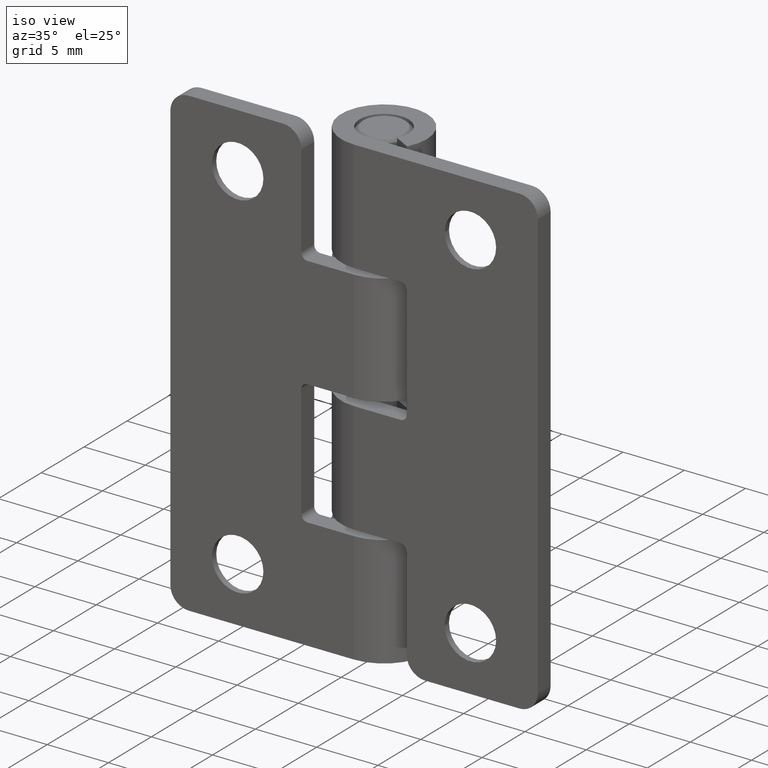
[diagram: clean part render]
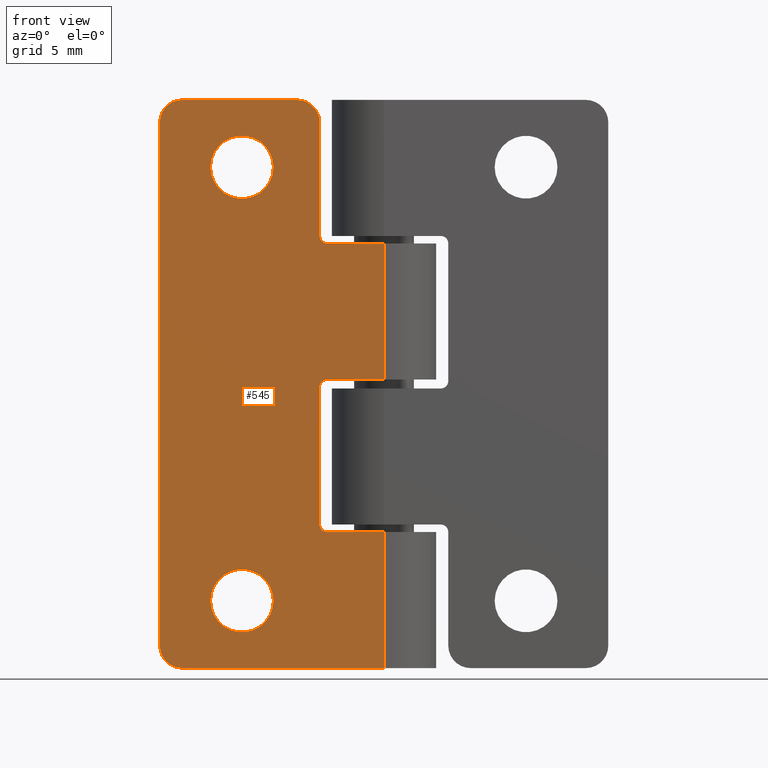
[diagram: tour spotlight — one face highlighted and labeled with its STEP entity id]
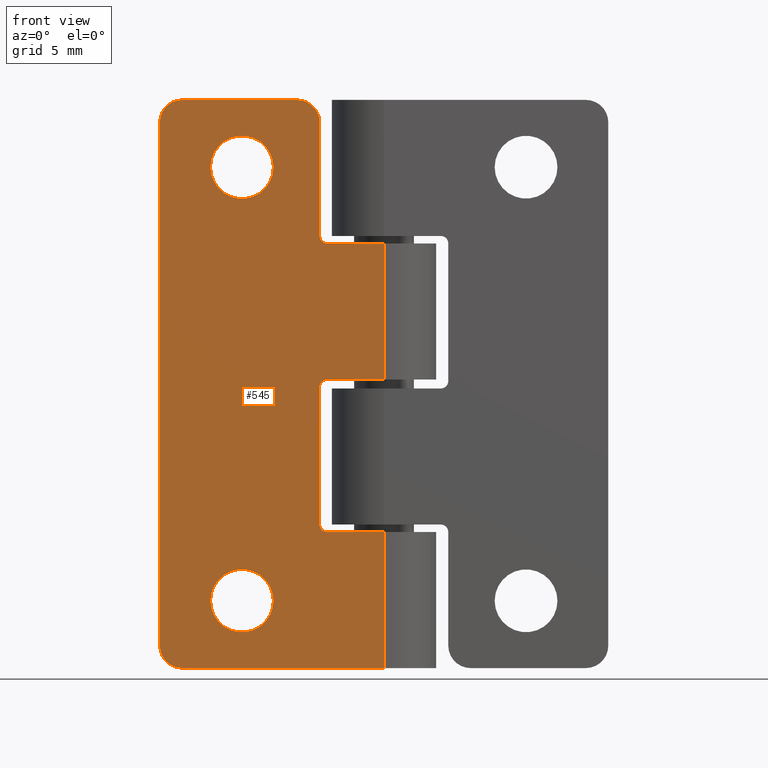
[diagram: tour spotlight — one face highlighted and labeled with its STEP entity id]
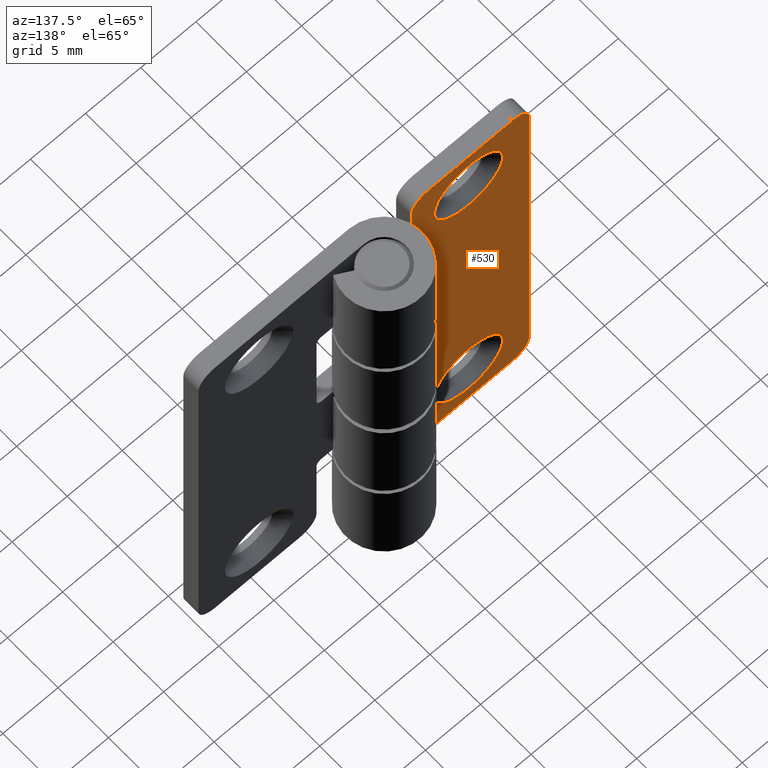
[diagram: tour spotlight — one face highlighted and labeled with its STEP entity id]
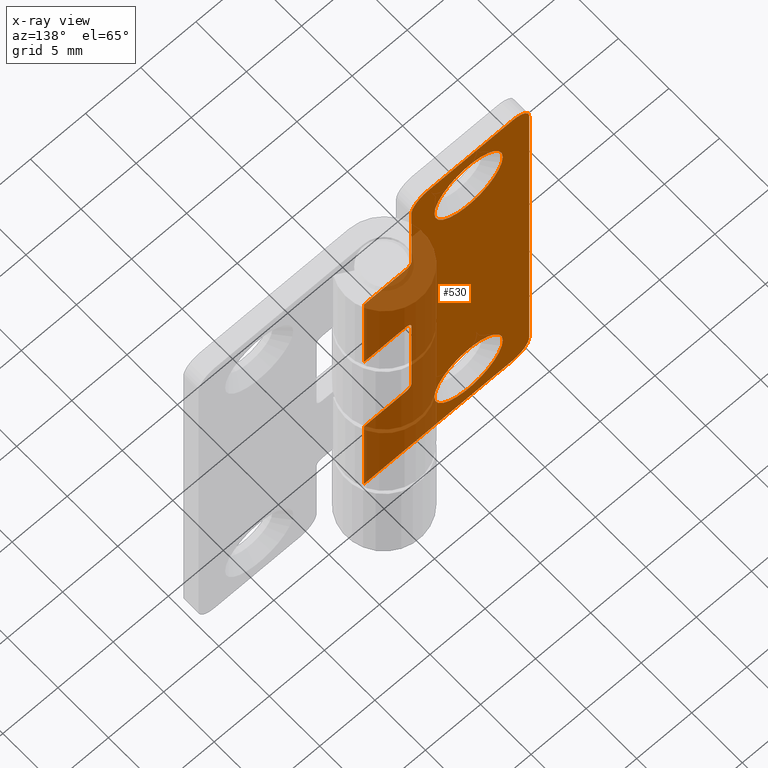
[diagram: x-ray of the same camera — body ghosted, this tour face saturated]
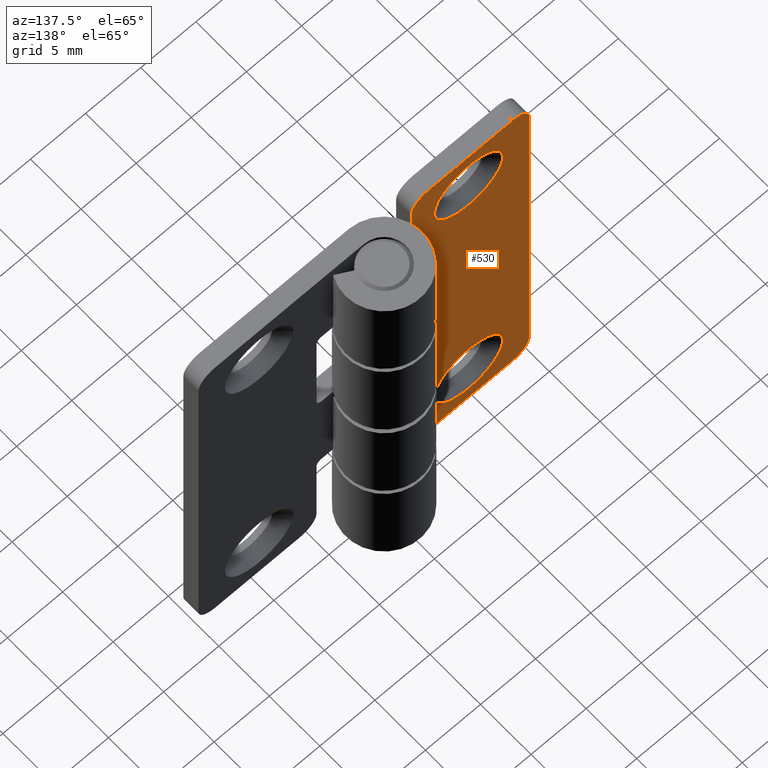
[diagram: tour spotlight — one face highlighted and labeled with its STEP entity id]
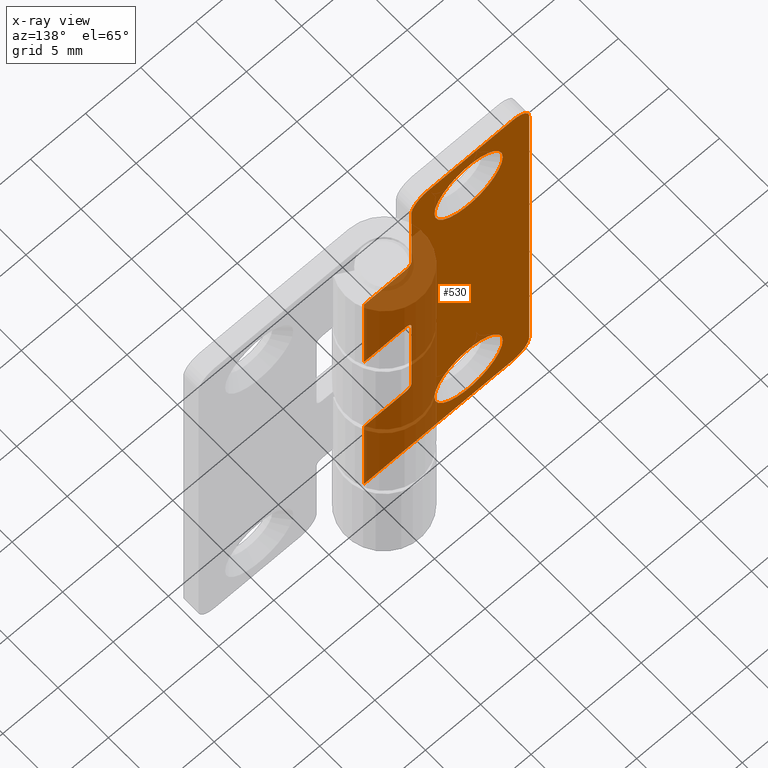
[diagram: x-ray of the same camera — body ghosted, this tour face saturated]
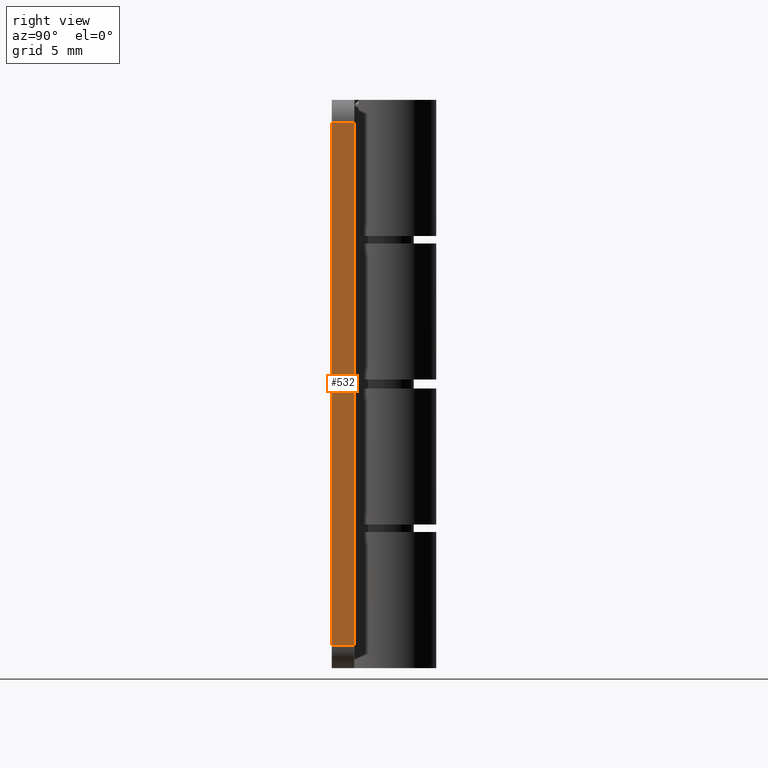
[diagram: tour spotlight — one face highlighted and labeled with its STEP entity id]
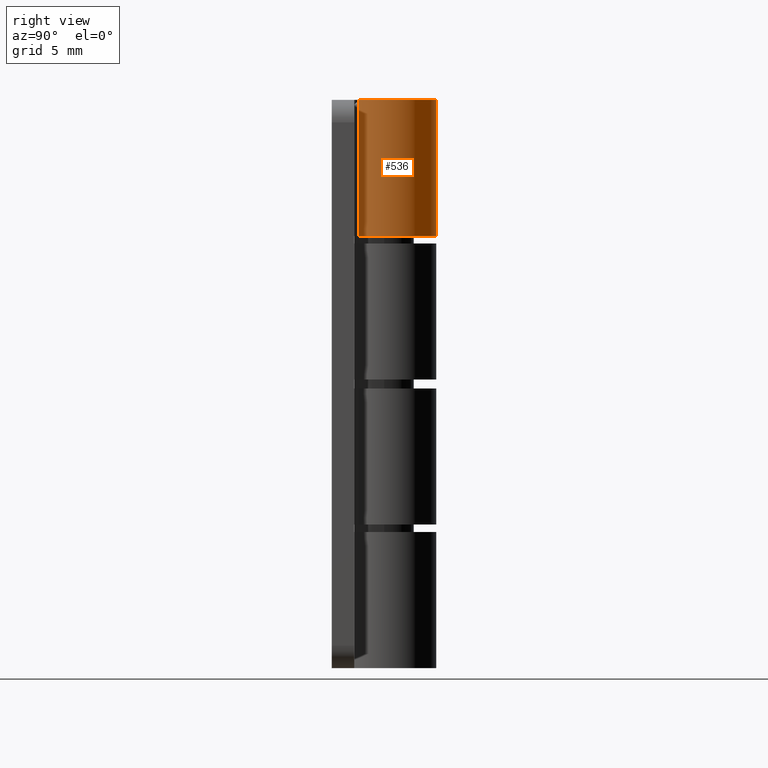
[diagram: tour spotlight — one face highlighted and labeled with its STEP entity id]
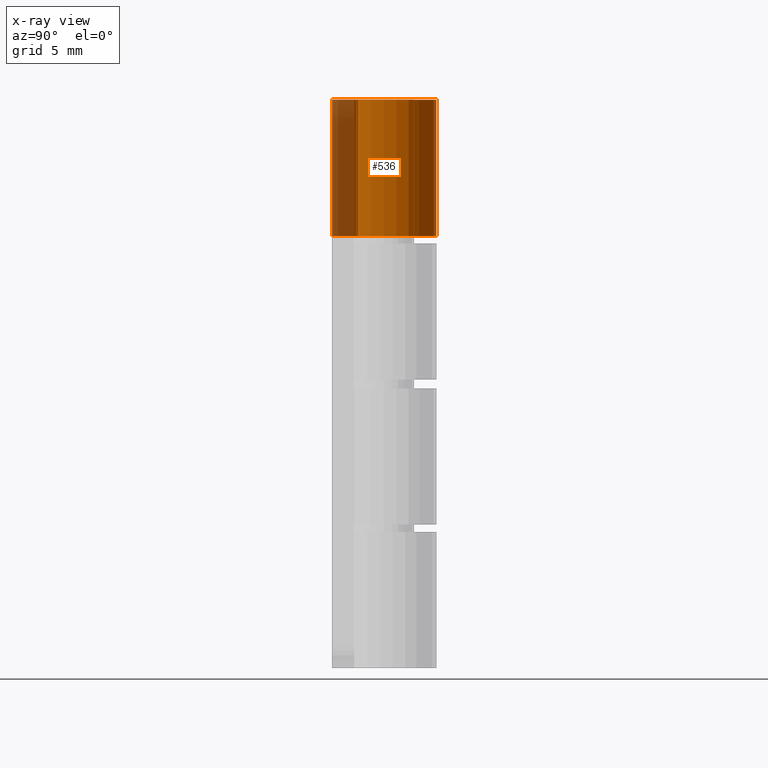
[diagram: x-ray of the same camera — body ghosted, this tour face saturated]
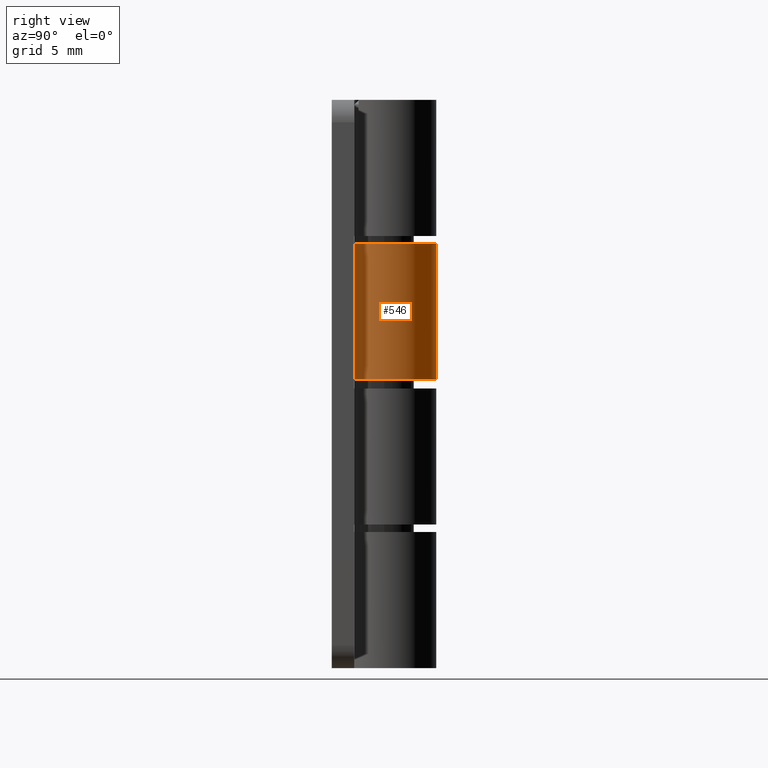
[diagram: tour spotlight — one face highlighted and labeled with its STEP entity id]
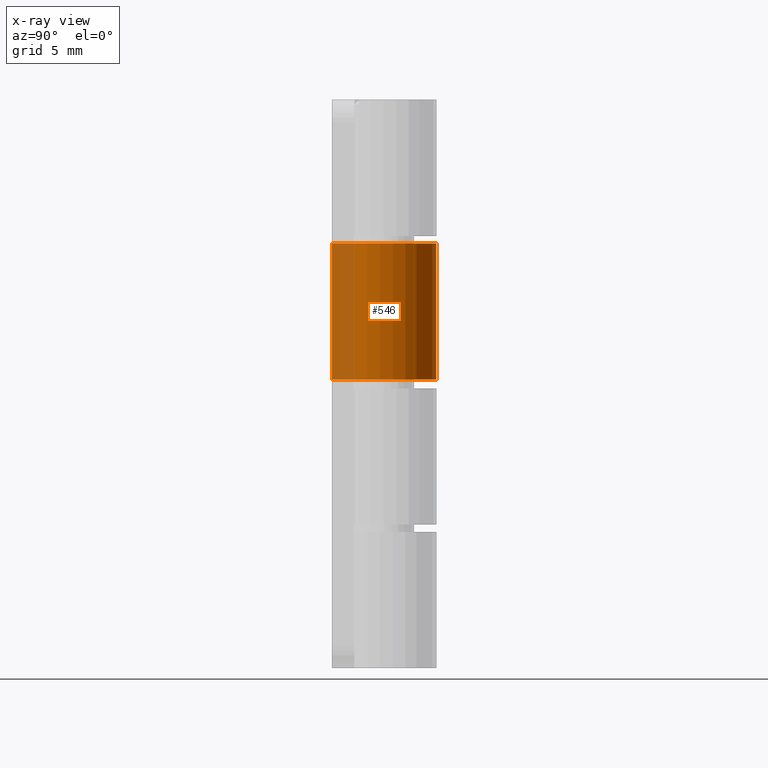
[diagram: x-ray of the same camera — body ghosted, this tour face saturated]
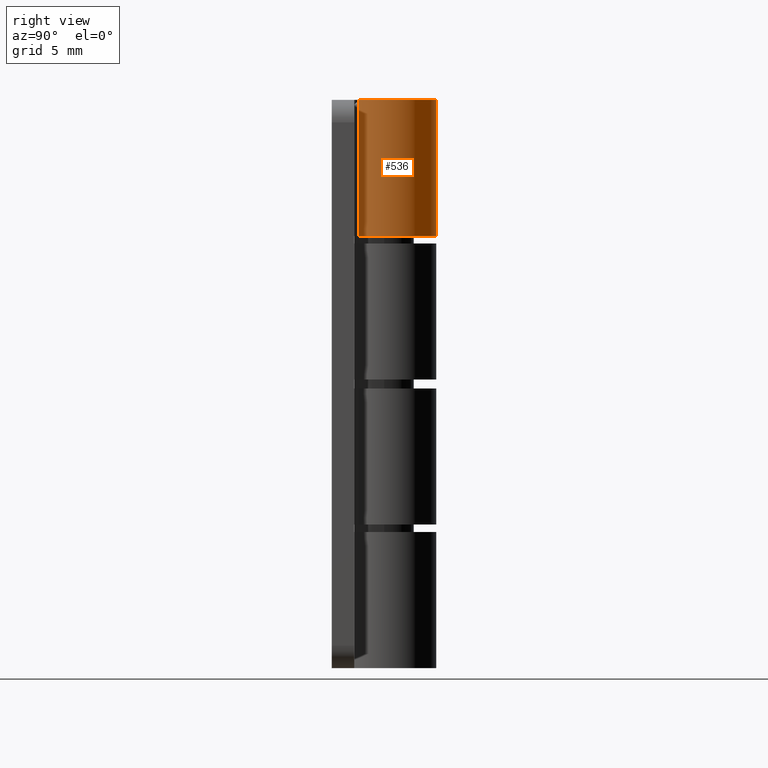
[diagram: tour spotlight — one face highlighted and labeled with its STEP entity id]
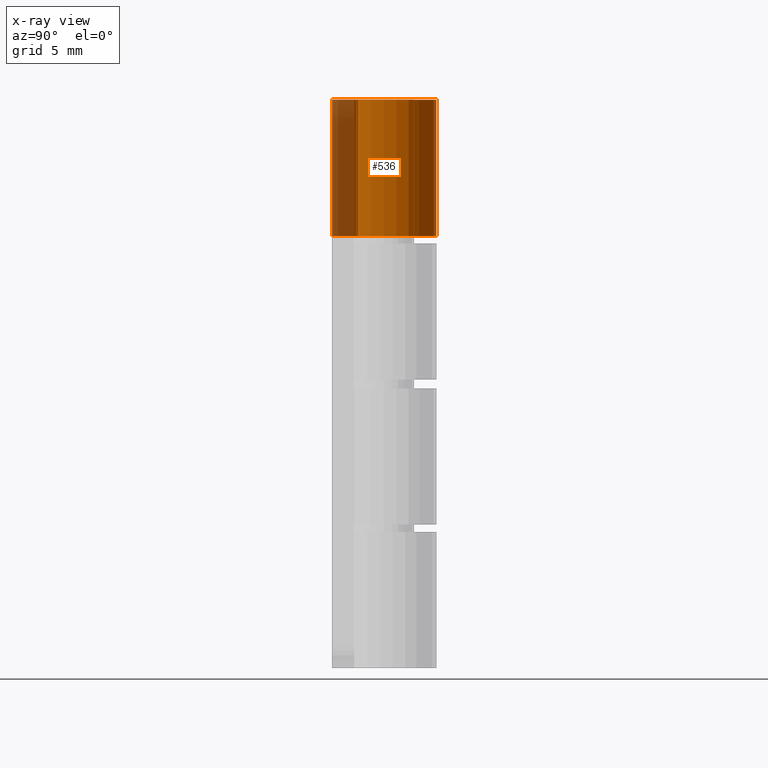
[diagram: x-ray of the same camera — body ghosted, this tour face saturated]
A machine part: a face-by-face anatomy tour. The part has 57 B-rep faces; the first image is the clean iso view, then the 8 largest visible faces are spotlighted one at a time (largest first), each with its STEP entity span.

Face 1 — front view, entity #545. In plain terms, the highlighted planar face has unit normal (0, -1, 0).
Definition (entity closure, byte-faithful):
#47=FACE_BOUND('',#127,.T.);
#48=FACE_BOUND('',#128,.T.);
#62=PLANE('',#605);
#89=FACE_OUTER_BOUND('',#126,.T.);
#126=EDGE_LOOP('',(#473,#474,#475,#476,#477,#478,#479,#480,#481,#482,#483,
#484,#485,#486,#487,#488));
#127=EDGE_LOOP('',(#489));
#128=EDGE_LOOP('',(#490));
#143=LINE('',#811,#183);
#146=LINE('',#823,#186);
#153=LINE('',#849,#193);
#157=LINE('',#861,#197);
#166=LINE('',#888,#206);
#168=LINE('',#893,#208);
#169=LINE('',#896,#209);
#171=LINE('',#904,#211);
#177=LINE('',#931,#217);
#178=LINE('',#932,#218);
#183=VECTOR('',#636,7.6);
#186=VECTOR('',#647,3.8);
#193=VECTOR('',#670,3.8);
#197=VECTOR('',#682,7.69999999999999);
#206=VECTOR('',#707,35.);
#208=VECTOR('',#715,9.2);
#209=VECTOR('',#718,3.80000000000001);
#211=VECTOR('',#726,9.1);
#217=VECTOR('',#762,13.5);
#218=VECTOR('',#763,9.1);
#220=CIRCLE('',#558,0.5);
#221=CIRCLE('',#561,0.5);
#226=CIRCLE('',#568,0.5);
#230=CIRCLE('',#574,1.5);
#235=CIRCLE('',#582,1.5);
#236=CIRCLE('',#585,1.5);
#242=CIRCLE('',#600,2.1);
#244=CIRCLE('',#604,2.1);
#251=VERTEX_POINT('',#801);
#252=VERTEX_POINT('',#803);
#254=VERTEX_POINT('',#809);
#255=VERTEX_POINT('',#813);
#256=VERTEX_POINT('',#814);
#259=VERTEX_POINT('',#822);
#265=VERTEX_POINT('',#835);
#266=VERTEX_POINT('',#837);
#270=VERTEX_POINT('',#847);
#272=VERTEX_POINT('',#853);
#274=VERTEX_POINT('',#859);
#282=VERTEX_POINT('',#881);
#283=VERTEX_POINT('',#883);
#284=VERTEX_POINT('',#887);
#285=VERTEX_POINT('',#895);
#288=VERTEX_POINT('',#903);
#292=VERTEX_POINT('',#922);
#294=VERTEX_POINT('',#928);
#301=EDGE_CURVE('',#251,#252,#220,.T.);
#305=EDGE_CURVE('',#251,#254,#143,.T.);
#306=EDGE_CURVE('',#255,#256,#221,.T.);
#310=EDGE_CURVE('',#259,#256,#146,.T.);
#317=EDGE_CURVE('',#265,#266,#226,.T.);
#323=EDGE_CURVE('',#265,#270,#153,.T.);
#326=EDGE_CURVE('',#272,#254,#230,.T.);
#329=EDGE_CURVE('',#274,#272,#157,.T.);
#341=EDGE_CURVE('',#282,#283,#235,.T.);
#343=EDGE_CURVE('',#284,#283,#166,.T.);
#345=EDGE_CURVE('',#284,#274,#236,.T.);
#346=EDGE_CURVE('',#255,#266,#168,.T.);
#347=EDGE_CURVE('',#285,#252,#169,.T.);
#351=EDGE_CURVE('',#259,#288,#171,.T.);
#360=EDGE_CURVE('',#292,#292,#242,.T.);
#362=EDGE_CURVE('',#294,#294,#244,.T.);
#363=EDGE_CURVE('',#288,#282,#177,.T.);
#364=EDGE_CURVE('',#285,#270,#178,.T.);
#473=ORIENTED_EDGE('',*,*,#326,.F.);
#474=ORIENTED_EDGE('',*,*,#329,.F.);
#475=ORIENTED_EDGE('',*,*,#345,.F.);
#476=ORIENTED_EDGE('',*,*,#343,.T.);
#477=ORIENTED_EDGE('',*,*,#341,.F.);
#478=ORIENTED_EDGE('',*,*,#363,.F.);
#479=ORIENTED_EDGE('',*,*,#351,.F.);
#480=ORIENTED_EDGE('',*,*,#310,.T.);
#481=ORIENTED_EDGE('',*,*,#306,.F.);
#482=ORIENTED_EDGE('',*,*,#346,.T.);
#483=ORIENTED_EDGE('',*,*,#317,.F.);
#484=ORIENTED_EDGE('',*,*,#323,.T.);
#485=ORIENTED_EDGE('',*,*,#364,.F.);
#486=ORIENTED_EDGE('',*,*,#347,.T.);
#487=ORIENTED_EDGE('',*,*,#301,.F.);
#488=ORIENTED_EDGE('',*,*,#305,.T.);
#489=ORIENTED_EDGE('',*,*,#360,.T.);
#490=ORIENTED_EDGE('',*,*,#362,.T.);
#545=ADVANCED_FACE('',(#89,#47,#48),#62,.T.);
#558=AXIS2_PLACEMENT_3D('',#804,#629,#630);
#561=AXIS2_PLACEMENT_3D('',#815,#639,#640);
#568=AXIS2_PLACEMENT_3D('',#838,#659,#660);
#574=AXIS2_PLACEMENT_3D('',#855,#676,#677);
#582=AXIS2_PLACEMENT_3D('',#884,#702,#703);
#585=AXIS2_PLACEMENT_3D('',#891,#711,#712);
#600=AXIS2_PLACEMENT_3D('',#923,#750,#751);
#604=AXIS2_PLACEMENT_3D('',#929,#758,#759);
#605=AXIS2_PLACEMENT_3D('',#930,#760,#761);
#629=DIRECTION('center_axis',(1.48029736616688E-16,-1.,0.));
#630=DIRECTION('ref_axis',(0.707106781186547,1.04672830578919E-16,0.707106781186548));
#636=DIRECTION('',(4.09029535388216E-16,6.05485343919636E-32,-1.));
#639=DIRECTION('center_axis',(1.48029736616688E-16,-1.,0.));
#640=DIRECTION('ref_axis',(0.707106781186548,1.04672830578919E-16,0.707106781186548));
#647=DIRECTION('',(1.,1.48029736616688E-16,0.));
#659=DIRECTION('center_axis',(1.48029736616688E-16,-1.,0.));
#660=DIRECTION('ref_axis',(0.707106781186548,1.04672830578919E-16,-0.707106781186547));
#670=DIRECTION('',(-1.,-1.48029736616688E-16,-4.06112035344191E-16));
#676=DIRECTION('center_axis',(-1.48029736616688E-16,1.,0.));
#677=DIRECTION('ref_axis',(-0.707106781186547,-1.04672830578919E-16,-0.707106781186548));
#682=DIRECTION('',(-1.,-1.48029736616688E-16,0.));
#702=DIRECTION('center_axis',(-1.48029736616688E-16,1.,0.));
#703=DIRECTION('ref_axis',(0.707106781186546,1.04672830578918E-16,0.707106781186549));
#707=DIRECTION('',(0.,0.,1.));
#711=DIRECTION('center_axis',(-1.48029736616688E-16,1.,0.));
#712=DIRECTION('ref_axis',(0.707106781186546,1.04672830578918E-16,-0.707106781186549));
#715=DIRECTION('',(4.09029535388216E-16,6.05485343919636E-32,-1.));
#718=DIRECTION('',(1.,1.48029736616688E-16,8.12224070688383E-16));
#726=DIRECTION('',(0.,0.,1.));
#750=DIRECTION('center_axis',(-1.48029736616688E-16,1.,0.));
#751=DIRECTION('ref_axis',(1.,1.48029736616688E-16,0.));
#758=DIRECTION('center_axis',(-1.48029736616688E-16,1.,0.));
#759=DIRECTION('ref_axis',(1.,1.48029736616688E-16,0.));
#760=DIRECTION('center_axis',(1.48029736616688E-16,-1.,0.));
#761=DIRECTION('ref_axis',(1.,0.,0.));
#762=DIRECTION('',(1.,1.48029736616688E-16,0.));
#763=DIRECTION('',(0.,0.,1.));
#801=CARTESIAN_POINT('',(4.30000000000001,-3.5,-9.9));
#803=CARTESIAN_POINT('',(3.80000000000001,-3.5,-9.4));
#804=CARTESIAN_POINT('Origin',(3.80000000000001,-3.5,-9.9));
#809=CARTESIAN_POINT('',(4.30000000000001,-3.5,-17.5));
#811=CARTESIAN_POINT('',(4.30000000000001,-3.5,-9.5));
#813=CARTESIAN_POINT('',(4.3,-3.5,9.4));
#814=CARTESIAN_POINT('',(3.8,-3.5,9.9));
#815=CARTESIAN_POINT('Origin',(3.8,-3.5,9.4));
#822=CARTESIAN_POINT('',(4.28626379701574E-16,-3.5,9.9));
#823=CARTESIAN_POINT('',(2.15,-3.5,9.9));
#835=CARTESIAN_POINT('',(3.8,-3.5,-0.299999999999998));
#837=CARTESIAN_POINT('',(4.3,-3.5,0.200000000000002));
#838=CARTESIAN_POINT('Origin',(3.8,-3.5,0.200000000000002));
#847=CARTESIAN_POINT('',(4.28626379701574E-16,-3.5,-0.3));
#849=CARTESIAN_POINT('',(-3.31757016784401,-3.5,-0.300000000000001));
#853=CARTESIAN_POINT('',(5.80000000000001,-3.5,-19.));
#855=CARTESIAN_POINT('Origin',(5.80000000000001,-3.5,-17.5));
#859=CARTESIAN_POINT('',(13.5,-3.5,-19.));
#861=CARTESIAN_POINT('',(0.,-3.5,-19.));
#881=CARTESIAN_POINT('',(13.5,-3.5,19.));
#883=CARTESIAN_POINT('',(15.,-3.5,17.5));
#884=CARTESIAN_POINT('Origin',(13.5,-3.5,17.5));
#887=CARTESIAN_POINT('',(15.,-3.5,-17.5));
#888=CARTESIAN_POINT('',(15.,-3.5,0.));
#891=CARTESIAN_POINT('Origin',(13.5,-3.5,-17.5));
#893=CARTESIAN_POINT('',(4.3,-3.5,-0.149999999999998));
#895=CARTESIAN_POINT('',(4.28626379701574E-16,-3.5,-9.4));
#896=CARTESIAN_POINT('',(2.15000000000001,-3.5,-9.4));
#903=CARTESIAN_POINT('',(5.55111512312578E-16,-3.5,19.));
#904=CARTESIAN_POINT('',(4.28626379701574E-16,-3.5,0.));
#922=CARTESIAN_POINT('',(7.4,-3.5,-14.5));
#923=CARTESIAN_POINT('Origin',(9.5,-3.5,-14.5));
#928=CARTESIAN_POINT('',(7.4,-3.5,14.5));
#929=CARTESIAN_POINT('Origin',(9.5,-3.5,14.5));
#930=CARTESIAN_POINT('Origin',(4.28626379701574E-16,-3.5,0.));
#931=CARTESIAN_POINT('',(0.,-3.5,19.));
#932=CARTESIAN_POINT('',(4.28626379701574E-16,-3.5,0.));

Face 2 — front view, entity #545. In plain terms, the highlighted planar face has unit normal (0, -1, -0).
Definition (entity closure, byte-faithful):
#47=FACE_BOUND('',#127,.T.);
#48=FACE_BOUND('',#128,.T.);
#62=PLANE('',#605);
#89=FACE_OUTER_BOUND('',#126,.T.);
#126=EDGE_LOOP('',(#473,#474,#475,#476,#477,#478,#479,#480,#481,#482,#483,
#484,#485,#486,#487,#488));
#127=EDGE_LOOP('',(#489));
#128=EDGE_LOOP('',(#490));
#143=LINE('',#811,#183);
#146=LINE('',#823,#186);
#153=LINE('',#849,#193);
#157=LINE('',#861,#197);
#166=LINE('',#888,#206);
#168=LINE('',#893,#208);
#169=LINE('',#896,#209);
#171=LINE('',#904,#211);
#177=LINE('',#931,#217);
#178=LINE('',#932,#218);
#183=VECTOR('',#636,7.6);
#186=VECTOR('',#647,3.8);
#193=VECTOR('',#670,3.8);
#197=VECTOR('',#682,7.69999999999999);
#206=VECTOR('',#707,35.);
#208=VECTOR('',#715,9.2);
#209=VECTOR('',#718,3.80000000000001);
#211=VECTOR('',#726,9.1);
#217=VECTOR('',#762,13.5);
#218=VECTOR('',#763,9.1);
#220=CIRCLE('',#558,0.5);
#221=CIRCLE('',#561,0.5);
#226=CIRCLE('',#568,0.5);
#230=CIRCLE('',#574,1.5);
#235=CIRCLE('',#582,1.5);
#236=CIRCLE('',#585,1.5);
#242=CIRCLE('',#600,2.1);
#244=CIRCLE('',#604,2.1);
#251=VERTEX_POINT('',#801);
#252=VERTEX_POINT('',#803);
#254=VERTEX_POINT('',#809);
#255=VERTEX_POINT('',#813);
#256=VERTEX_POINT('',#814);
#259=VERTEX_POINT('',#822);
#265=VERTEX_POINT('',#835);
#266=VERTEX_POINT('',#837);
#270=VERTEX_POINT('',#847);
#272=VERTEX_POINT('',#853);
#274=VERTEX_POINT('',#859);
#282=VERTEX_POINT('',#881);
#283=VERTEX_POINT('',#883);
#284=VERTEX_POINT('',#887);
#285=VERTEX_POINT('',#895);
#288=VERTEX_POINT('',#903);
#292=VERTEX_POINT('',#922);
#294=VERTEX_POINT('',#928);
#301=EDGE_CURVE('',#251,#252,#220,.T.);
#305=EDGE_CURVE('',#251,#254,#143,.T.);
#306=EDGE_CURVE('',#255,#256,#221,.T.);
#310=EDGE_CURVE('',#259,#256,#146,.T.);
#317=EDGE_CURVE('',#265,#266,#226,.T.);
#323=EDGE_CURVE('',#265,#270,#153,.T.);
#326=EDGE_CURVE('',#272,#254,#230,.T.);
#329=EDGE_CURVE('',#274,#272,#157,.T.);
#341=EDGE_CURVE('',#282,#283,#235,.T.);
#343=EDGE_CURVE('',#284,#283,#166,.T.);
#345=EDGE_CURVE('',#284,#274,#236,.T.);
#346=EDGE_CURVE('',#255,#266,#168,.T.);
#347=EDGE_CURVE('',#285,#252,#169,.T.);
#351=EDGE_CURVE('',#259,#288,#171,.T.);
#360=EDGE_CURVE('',#292,#292,#242,.T.);
#362=EDGE_CURVE('',#294,#294,#244,.T.);
#363=EDGE_CURVE('',#288,#282,#177,.T.);
#364=EDGE_CURVE('',#285,#270,#178,.T.);
#473=ORIENTED_EDGE('',*,*,#326,.F.);
#474=ORIENTED_EDGE('',*,*,#329,.F.);
#475=ORIENTED_EDGE('',*,*,#345,.F.);
#476=ORIENTED_EDGE('',*,*,#343,.T.);
#477=ORIENTED_EDGE('',*,*,#341,.F.);
#478=ORIENTED_EDGE('',*,*,#363,.F.);
#479=ORIENTED_EDGE('',*,*,#351,.F.);
#480=ORIENTED_EDGE('',*,*,#310,.T.);
#481=ORIENTED_EDGE('',*,*,#306,.F.);
#482=ORIENTED_EDGE('',*,*,#346,.T.);
#483=ORIENTED_EDGE('',*,*,#317,.F.);
#484=ORIENTED_EDGE('',*,*,#323,.T.);
#485=ORIENTED_EDGE('',*,*,#364,.F.);
#486=ORIENTED_EDGE('',*,*,#347,.T.);
#487=ORIENTED_EDGE('',*,*,#301,.F.);
#488=ORIENTED_EDGE('',*,*,#305,.T.);
#489=ORIENTED_EDGE('',*,*,#360,.T.);
#490=ORIENTED_EDGE('',*,*,#362,.T.);
#545=ADVANCED_FACE('',(#89,#47,#48),#62,.T.);
#558=AXIS2_PLACEMENT_3D('',#804,#629,#630);
#561=AXIS2_PLACEMENT_3D('',#815,#639,#640);
#568=AXIS2_PLACEMENT_3D('',#838,#659,#660);
#574=AXIS2_PLACEMENT_3D('',#855,#676,#677);
#582=AXIS2_PLACEMENT_3D('',#884,#702,#703);
#585=AXIS2_PLACEMENT_3D('',#891,#711,#712);
#600=AXIS2_PLACEMENT_3D('',#923,#750,#751);
#604=AXIS2_PLACEMENT_3D('',#929,#758,#759);
#605=AXIS2_PLACEMENT_3D('',#930,#760,#761);
#629=DIRECTION('center_axis',(1.48029736616688E-16,-1.,0.));
#630=DIRECTION('ref_axis',(0.707106781186547,1.04672830578919E-16,0.707106781186548));
#636=DIRECTION('',(4.09029535388216E-16,6.05485343919636E-32,-1.));
#639=DIRECTION('center_axis',(1.48029736616688E-16,-1.,0.));
#640=DIRECTION('ref_axis',(0.707106781186548,1.04672830578919E-16,0.707106781186548));
#647=DIRECTION('',(1.,1.48029736616688E-16,0.));
#659=DIRECTION('center_axis',(1.48029736616688E-16,-1.,0.));
#660=DIRECTION('ref_axis',(0.707106781186548,1.04672830578919E-16,-0.707106781186547));
#670=DIRECTION('',(-1.,-1.48029736616688E-16,-4.06112035344191E-16));
#676=DIRECTION('center_axis',(-1.48029736616688E-16,1.,0.));
#677=DIRECTION('ref_axis',(-0.707106781186547,-1.04672830578919E-16,-0.707106781186548));
#682=DIRECTION('',(-1.,-1.48029736616688E-16,0.));
#702=DIRECTION('center_axis',(-1.48029736616688E-16,1.,0.));
#703=DIRECTION('ref_axis',(0.707106781186546,1.04672830578918E-16,0.707106781186549));
#707=DIRECTION('',(0.,0.,1.));
#711=DIRECTION('center_axis',(-1.48029736616688E-16,1.,0.));
#712=DIRECTION('ref_axis',(0.707106781186546,1.04672830578918E-16,-0.707106781186549));
#715=DIRECTION('',(4.09029535388216E-16,6.05485343919636E-32,-1.));
#718=DIRECTION('',(1.,1.48029736616688E-16,8.12224070688383E-16));
#726=DIRECTION('',(0.,0.,1.));
#750=DIRECTION('center_axis',(-1.48029736616688E-16,1.,0.));
#751=DIRECTION('ref_axis',(1.,1.48029736616688E-16,0.));
#758=DIRECTION('center_axis',(-1.48029736616688E-16,1.,0.));
#759=DIRECTION('ref_axis',(1.,1.48029736616688E-16,0.));
#760=DIRECTION('center_axis',(1.48029736616688E-16,-1.,0.));
#761=DIRECTION('ref_axis',(1.,0.,0.));
#762=DIRECTION('',(1.,1.48029736616688E-16,0.));
#763=DIRECTION('',(0.,0.,1.));
#801=CARTESIAN_POINT('',(4.30000000000001,-3.5,-9.9));
#803=CARTESIAN_POINT('',(3.80000000000001,-3.5,-9.4));
#804=CARTESIAN_POINT('Origin',(3.80000000000001,-3.5,-9.9));
#809=CARTESIAN_POINT('',(4.30000000000001,-3.5,-17.5));
#811=CARTESIAN_POINT('',(4.30000000000001,-3.5,-9.5));
#813=CARTESIAN_POINT('',(4.3,-3.5,9.4));
#814=CARTESIAN_POINT('',(3.8,-3.5,9.9));
#815=CARTESIAN_POINT('Origin',(3.8,-3.5,9.4));
#822=CARTESIAN_POINT('',(4.28626379701574E-16,-3.5,9.9));
#823=CARTESIAN_POINT('',(2.15,-3.5,9.9));
#835=CARTESIAN_POINT('',(3.8,-3.5,-0.299999999999998));
#837=CARTESIAN_POINT('',(4.3,-3.5,0.200000000000002));
#838=CARTESIAN_POINT('Origin',(3.8,-3.5,0.200000000000002));
#847=CARTESIAN_POINT('',(4.28626379701574E-16,-3.5,-0.3));
#849=CARTESIAN_POINT('',(-3.31757016784401,-3.5,-0.300000000000001));
#853=CARTESIAN_POINT('',(5.80000000000001,-3.5,-19.));
#855=CARTESIAN_POINT('Origin',(5.80000000000001,-3.5,-17.5));
#859=CARTESIAN_POINT('',(13.5,-3.5,-19.));
#861=CARTESIAN_POINT('',(0.,-3.5,-19.));
#881=CARTESIAN_POINT('',(13.5,-3.5,19.));
#883=CARTESIAN_POINT('',(15.,-3.5,17.5));
#884=CARTESIAN_POINT('Origin',(13.5,-3.5,17.5));
#887=CARTESIAN_POINT('',(15.,-3.5,-17.5));
#888=CARTESIAN_POINT('',(15.,-3.5,0.));
#891=CARTESIAN_POINT('Origin',(13.5,-3.5,-17.5));
#893=CARTESIAN_POINT('',(4.3,-3.5,-0.149999999999998));
#895=CARTESIAN_POINT('',(4.28626379701574E-16,-3.5,-9.4));
#896=CARTESIAN_POINT('',(2.15000000000001,-3.5,-9.4));
#903=CARTESIAN_POINT('',(5.55111512312578E-16,-3.5,19.));
#904=CARTESIAN_POINT('',(4.28626379701574E-16,-3.5,0.));
#922=CARTESIAN_POINT('',(7.4,-3.5,-14.5));
#923=CARTESIAN_POINT('Origin',(9.5,-3.5,-14.5));
#928=CARTESIAN_POINT('',(7.4,-3.5,14.5));
#929=CARTESIAN_POINT('Origin',(9.5,-3.5,14.5));
#930=CARTESIAN_POINT('Origin',(4.28626379701574E-16,-3.5,0.));
#931=CARTESIAN_POINT('',(0.,-3.5,19.));
#932=CARTESIAN_POINT('',(4.28626379701574E-16,-3.5,0.));

Face 3 — auxiliary view, entity #530. An x-ray twin of the same camera follows (body ghosted, this face saturated) — the face is partly hidden behind the body. In plain terms, the highlighted planar face has unit normal (-0, 1, 0).
Definition (entity closure, byte-faithful):
#41=FACE_BOUND('',#106,.T.);
#42=FACE_BOUND('',#107,.T.);
#56=PLANE('',#576);
#74=FACE_OUTER_BOUND('',#105,.T.);
#105=EDGE_LOOP('',(#405,#406,#407,#408,#409,#410,#411,#412,#413,#414,#415,
#416,#417,#418,#419,#420));
#106=EDGE_LOOP('',(#421));
#107=EDGE_LOOP('',(#422));
#141=LINE('',#808,#181);
#148=LINE('',#830,#188);
#151=LINE('',#842,#191);
#155=LINE('',#858,#195);
#158=LINE('',#864,#198);
#159=LINE('',#865,#199);
#160=LINE('',#866,#200);
#161=LINE('',#868,#201);
#162=LINE('',#870,#202);
#163=LINE('',#874,#203);
#181=VECTOR('',#634,7.6);
#188=VECTOR('',#653,3.8);
#191=VECTOR('',#664,3.8);
#195=VECTOR('',#680,7.69999999999999);
#198=VECTOR('',#685,3.8);
#199=VECTOR('',#686,9.1);
#200=VECTOR('',#687,9.2);
#201=VECTOR('',#688,9.1);
#202=VECTOR('',#689,13.5);
#203=VECTOR('',#692,35.);
#219=CIRCLE('',#557,0.5);
#222=CIRCLE('',#562,0.5);
#225=CIRCLE('',#567,0.5);
#229=CIRCLE('',#573,1.5);
#231=CIRCLE('',#577,1.5);
#232=CIRCLE('',#578,1.5);
#233=CIRCLE('',#579,3.1);
#234=CIRCLE('',#580,3.1);
#249=VERTEX_POINT('',#798);
#250=VERTEX_POINT('',#799);
#253=VERTEX_POINT('',#807);
#257=VERTEX_POINT('',#816);
#258=VERTEX_POINT('',#818);
#262=VERTEX_POINT('',#828);
#263=VERTEX_POINT('',#832);
#264=VERTEX_POINT('',#833);
#267=VERTEX_POINT('',#841);
#271=VERTEX_POINT('',#851);
#273=VERTEX_POINT('',#857);
#275=VERTEX_POINT('',#863);
#276=VERTEX_POINT('',#867);
#277=VERTEX_POINT('',#869);
#278=VERTEX_POINT('',#871);
#279=VERTEX_POINT('',#873);
#280=VERTEX_POINT('',#876);
#281=VERTEX_POINT('',#878);
#299=EDGE_CURVE('',#249,#250,#219,.T.);
#303=EDGE_CURVE('',#253,#250,#141,.T.);
#308=EDGE_CURVE('',#257,#258,#222,.T.);
#314=EDGE_CURVE('',#257,#262,#148,.T.);
#315=EDGE_CURVE('',#263,#264,#225,.T.);
#319=EDGE_CURVE('',#267,#264,#151,.T.);
#324=EDGE_CURVE('',#253,#271,#229,.T.);
#327=EDGE_CURVE('',#271,#273,#155,.T.);
#330=EDGE_CURVE('',#249,#275,#158,.T.);
#331=EDGE_CURVE('',#275,#267,#159,.T.);
#332=EDGE_CURVE('',#263,#258,#160,.T.);
#333=EDGE_CURVE('',#262,#276,#161,.T.);
#334=EDGE_CURVE('',#277,#276,#162,.T.);
#335=EDGE_CURVE('',#278,#277,#231,.T.);
#336=EDGE_CURVE('',#279,#278,#163,.T.);
#337=EDGE_CURVE('',#273,#279,#232,.T.);
#338=EDGE_CURVE('',#280,#280,#233,.T.);
#339=EDGE_CURVE('',#281,#281,#234,.T.);
#405=ORIENTED_EDGE('',*,*,#324,.F.);
#406=ORIENTED_EDGE('',*,*,#303,.T.);
#407=ORIENTED_EDGE('',*,*,#299,.F.);
#408=ORIENTED_EDGE('',*,*,#330,.T.);
#409=ORIENTED_EDGE('',*,*,#331,.T.);
#410=ORIENTED_EDGE('',*,*,#319,.T.);
#411=ORIENTED_EDGE('',*,*,#315,.F.);
#412=ORIENTED_EDGE('',*,*,#332,.T.);
#413=ORIENTED_EDGE('',*,*,#308,.F.);
#414=ORIENTED_EDGE('',*,*,#314,.T.);
#415=ORIENTED_EDGE('',*,*,#333,.T.);
#416=ORIENTED_EDGE('',*,*,#334,.F.);
#417=ORIENTED_EDGE('',*,*,#335,.F.);
#418=ORIENTED_EDGE('',*,*,#336,.F.);
#419=ORIENTED_EDGE('',*,*,#337,.F.);
#420=ORIENTED_EDGE('',*,*,#327,.F.);
#421=ORIENTED_EDGE('',*,*,#338,.T.);
#422=ORIENTED_EDGE('',*,*,#339,.T.);
#530=ADVANCED_FACE('',(#74,#41,#42),#56,.T.);
#557=AXIS2_PLACEMENT_3D('',#800,#626,#627);
#562=AXIS2_PLACEMENT_3D('',#819,#642,#643);
#567=AXIS2_PLACEMENT_3D('',#834,#656,#657);
#573=AXIS2_PLACEMENT_3D('',#852,#673,#674);
#576=AXIS2_PLACEMENT_3D('',#862,#683,#684);
#577=AXIS2_PLACEMENT_3D('',#872,#690,#691);
#578=AXIS2_PLACEMENT_3D('',#875,#693,#694);
#579=AXIS2_PLACEMENT_3D('',#877,#695,#696);
#580=AXIS2_PLACEMENT_3D('',#879,#697,#698);
#626=DIRECTION('center_axis',(-2.40548322002117E-16,1.,0.));
#627=DIRECTION('ref_axis',(0.707106781186547,1.70093349690742E-16,0.707106781186548));
#634=DIRECTION('',(-4.09029535388216E-16,-9.83913683869409E-32,1.));
#642=DIRECTION('center_axis',(-2.40548322002117E-16,1.,0.));
#643=DIRECTION('ref_axis',(0.707106781186548,1.70093349690742E-16,0.707106781186548));
#653=DIRECTION('',(-1.,-2.40548322002117E-16,0.));
#656=DIRECTION('center_axis',(-2.40548322002117E-16,1.,0.));
#657=DIRECTION('ref_axis',(0.707106781186548,1.70093349690742E-16,-0.707106781186547));
#664=DIRECTION('',(1.,2.40548322002117E-16,4.06112035344191E-16));
#673=DIRECTION('center_axis',(2.40548322002117E-16,-1.,0.));
#674=DIRECTION('ref_axis',(-0.707106781186547,-1.70093349690742E-16,-0.707106781186548));
#680=DIRECTION('',(1.,2.40548322002117E-16,0.));
#683=DIRECTION('center_axis',(-2.40548322002117E-16,1.,0.));
#684=DIRECTION('ref_axis',(-1.,-4.44089209850063E-16,0.));
#685=DIRECTION('',(-1.,-2.40548322002117E-16,-8.12224070688383E-16));
#686=DIRECTION('',(0.,0.,1.));
#687=DIRECTION('',(-4.09029535388216E-16,-9.83913683869409E-32,1.));
#688=DIRECTION('',(0.,0.,1.));
#689=DIRECTION('',(-1.,-2.40548322002117E-16,0.));
#690=DIRECTION('center_axis',(2.40548322002117E-16,-1.,0.));
#691=DIRECTION('ref_axis',(0.707106781186546,1.70093349690742E-16,0.707106781186549));
#692=DIRECTION('',(0.,0.,1.));
#693=DIRECTION('center_axis',(2.40548322002117E-16,-1.,0.));
#694=DIRECTION('ref_axis',(0.707106781186546,1.70093349690742E-16,-0.707106781186549));
#695=DIRECTION('center_axis',(2.40548322002117E-16,-1.,0.));
#696=DIRECTION('ref_axis',(1.,2.40548322002117E-16,0.));
#697=DIRECTION('center_axis',(2.40548322002117E-16,-1.,0.));
#698=DIRECTION('ref_axis',(1.,2.40548322002117E-16,0.));
#798=CARTESIAN_POINT('',(3.8,-2.,-9.4));
#799=CARTESIAN_POINT('',(4.30000000000001,-2.,-9.9));
#800=CARTESIAN_POINT('Origin',(3.80000000000001,-2.,-9.9));
#807=CARTESIAN_POINT('',(4.30000000000001,-2.,-17.5));
#808=CARTESIAN_POINT('',(4.30000000000001,-2.,-9.5));
#816=CARTESIAN_POINT('',(3.8,-2.,9.9));
#818=CARTESIAN_POINT('',(4.3,-2.,9.4));
#819=CARTESIAN_POINT('Origin',(3.8,-2.,9.4));
#828=CARTESIAN_POINT('',(4.89858719658941E-16,-2.,9.9));
#830=CARTESIAN_POINT('',(9.65,-2.,9.9));
#832=CARTESIAN_POINT('',(4.3,-2.,0.200000000000002));
#833=CARTESIAN_POINT('',(3.8,-2.,-0.299999999999998));
#834=CARTESIAN_POINT('Origin',(3.8,-2.,0.200000000000002));
#841=CARTESIAN_POINT('',(4.89858719658941E-16,-2.,-0.3));
#842=CARTESIAN_POINT('',(4.18242983215599,-2.,-0.299999999999998));
#851=CARTESIAN_POINT('',(5.80000000000001,-2.,-19.));
#852=CARTESIAN_POINT('Origin',(5.80000000000001,-2.,-17.5));
#857=CARTESIAN_POINT('',(13.5,-2.,-19.));
#858=CARTESIAN_POINT('',(15.,-2.,-19.));
#862=CARTESIAN_POINT('Origin',(15.,-2.,0.));
#863=CARTESIAN_POINT('',(4.89858719658941E-16,-2.,-9.4));
#864=CARTESIAN_POINT('',(9.65000000000001,-2.,-9.39999999999999));
#865=CARTESIAN_POINT('',(4.89858719658941E-16,-2.,0.));
#866=CARTESIAN_POINT('',(4.3,-2.,-0.150000000000001));
#867=CARTESIAN_POINT('',(5.55111512312578E-16,-2.,19.));
#868=CARTESIAN_POINT('',(4.89858719658941E-16,-2.,0.));
#869=CARTESIAN_POINT('',(13.5,-2.,19.));
#870=CARTESIAN_POINT('',(15.,-2.,19.));
#871=CARTESIAN_POINT('',(15.,-2.,17.5));
#872=CARTESIAN_POINT('Origin',(13.5,-2.,17.5));
#873=CARTESIAN_POINT('',(15.,-2.,-17.5));
#874=CARTESIAN_POINT('',(15.,-2.,0.));
#875=CARTESIAN_POINT('Origin',(13.5,-2.,-17.5));
#876=CARTESIAN_POINT('',(6.4,-2.,-14.5));
#877=CARTESIAN_POINT('Origin',(9.5,-2.,-14.5));
#878=CARTESIAN_POINT('',(6.4,-2.,14.5));
#879=CARTESIAN_POINT('Origin',(9.5,-2.,14.5));

Face 4 — auxiliary view, entity #530. An x-ray twin of the same camera follows (body ghosted, this face saturated) — the face is partly hidden behind the body. In plain terms, the highlighted planar face has unit normal (-0, 1, 0).
Definition (entity closure, byte-faithful):
#41=FACE_BOUND('',#106,.T.);
#42=FACE_BOUND('',#107,.T.);
#56=PLANE('',#576);
#74=FACE_OUTER_BOUND('',#105,.T.);
#105=EDGE_LOOP('',(#405,#406,#407,#408,#409,#410,#411,#412,#413,#414,#415,
#416,#417,#418,#419,#420));
#106=EDGE_LOOP('',(#421));
#107=EDGE_LOOP('',(#422));
#141=LINE('',#808,#181);
#148=LINE('',#830,#188);
#151=LINE('',#842,#191);
#155=LINE('',#858,#195);
#158=LINE('',#864,#198);
#159=LINE('',#865,#199);
#160=LINE('',#866,#200);
#161=LINE('',#868,#201);
#162=LINE('',#870,#202);
#163=LINE('',#874,#203);
#181=VECTOR('',#634,7.6);
#188=VECTOR('',#653,3.8);
#191=VECTOR('',#664,3.8);
#195=VECTOR('',#680,7.69999999999999);
#198=VECTOR('',#685,3.8);
#199=VECTOR('',#686,9.1);
#200=VECTOR('',#687,9.2);
#201=VECTOR('',#688,9.1);
#202=VECTOR('',#689,13.5);
#203=VECTOR('',#692,35.);
#219=CIRCLE('',#557,0.5);
#222=CIRCLE('',#562,0.5);
#225=CIRCLE('',#567,0.5);
#229=CIRCLE('',#573,1.5);
#231=CIRCLE('',#577,1.5);
#232=CIRCLE('',#578,1.5);
#233=CIRCLE('',#579,3.1);
#234=CIRCLE('',#580,3.1);
#249=VERTEX_POINT('',#798);
#250=VERTEX_POINT('',#799);
#253=VERTEX_POINT('',#807);
#257=VERTEX_POINT('',#816);
#258=VERTEX_POINT('',#818);
#262=VERTEX_POINT('',#828);
#263=VERTEX_POINT('',#832);
#264=VERTEX_POINT('',#833);
#267=VERTEX_POINT('',#841);
#271=VERTEX_POINT('',#851);
#273=VERTEX_POINT('',#857);
#275=VERTEX_POINT('',#863);
#276=VERTEX_POINT('',#867);
#277=VERTEX_POINT('',#869);
#278=VERTEX_POINT('',#871);
#279=VERTEX_POINT('',#873);
#280=VERTEX_POINT('',#876);
#281=VERTEX_POINT('',#878);
#299=EDGE_CURVE('',#249,#250,#219,.T.);
#303=EDGE_CURVE('',#253,#250,#141,.T.);
#308=EDGE_CURVE('',#257,#258,#222,.T.);
#314=EDGE_CURVE('',#257,#262,#148,.T.);
#315=EDGE_CURVE('',#263,#264,#225,.T.);
#319=EDGE_CURVE('',#267,#264,#151,.T.);
#324=EDGE_CURVE('',#253,#271,#229,.T.);
#327=EDGE_CURVE('',#271,#273,#155,.T.);
#330=EDGE_CURVE('',#249,#275,#158,.T.);
#331=EDGE_CURVE('',#275,#267,#159,.T.);
#332=EDGE_CURVE('',#263,#258,#160,.T.);
#333=EDGE_CURVE('',#262,#276,#161,.T.);
#334=EDGE_CURVE('',#277,#276,#162,.T.);
#335=EDGE_CURVE('',#278,#277,#231,.T.);
#336=EDGE_CURVE('',#279,#278,#163,.T.);
#337=EDGE_CURVE('',#273,#279,#232,.T.);
#338=EDGE_CURVE('',#280,#280,#233,.T.);
#339=EDGE_CURVE('',#281,#281,#234,.T.);
#405=ORIENTED_EDGE('',*,*,#324,.F.);
#406=ORIENTED_EDGE('',*,*,#303,.T.);
#407=ORIENTED_EDGE('',*,*,#299,.F.);
#408=ORIENTED_EDGE('',*,*,#330,.T.);
#409=ORIENTED_EDGE('',*,*,#331,.T.);
#410=ORIENTED_EDGE('',*,*,#319,.T.);
#411=ORIENTED_EDGE('',*,*,#315,.F.);
#412=ORIENTED_EDGE('',*,*,#332,.T.);
#413=ORIENTED_EDGE('',*,*,#308,.F.);
#414=ORIENTED_EDGE('',*,*,#314,.T.);
#415=ORIENTED_EDGE('',*,*,#333,.T.);
#416=ORIENTED_EDGE('',*,*,#334,.F.);
#417=ORIENTED_EDGE('',*,*,#335,.F.);
#418=ORIENTED_EDGE('',*,*,#336,.F.);
#419=ORIENTED_EDGE('',*,*,#337,.F.);
#420=ORIENTED_EDGE('',*,*,#327,.F.);
#421=ORIENTED_EDGE('',*,*,#338,.T.);
#422=ORIENTED_EDGE('',*,*,#339,.T.);
#530=ADVANCED_FACE('',(#74,#41,#42),#56,.T.);
#557=AXIS2_PLACEMENT_3D('',#800,#626,#627);
#562=AXIS2_PLACEMENT_3D('',#819,#642,#643);
#567=AXIS2_PLACEMENT_3D('',#834,#656,#657);
#573=AXIS2_PLACEMENT_3D('',#852,#673,#674);
#576=AXIS2_PLACEMENT_3D('',#862,#683,#684);
#577=AXIS2_PLACEMENT_3D('',#872,#690,#691);
#578=AXIS2_PLACEMENT_3D('',#875,#693,#694);
#579=AXIS2_PLACEMENT_3D('',#877,#695,#696);
#580=AXIS2_PLACEMENT_3D('',#879,#697,#698);
#626=DIRECTION('center_axis',(-2.40548322002117E-16,1.,0.));
#627=DIRECTION('ref_axis',(0.707106781186547,1.70093349690742E-16,0.707106781186548));
#634=DIRECTION('',(-4.09029535388216E-16,-9.83913683869409E-32,1.));
#642=DIRECTION('center_axis',(-2.40548322002117E-16,1.,0.));
#643=DIRECTION('ref_axis',(0.707106781186548,1.70093349690742E-16,0.707106781186548));
#653=DIRECTION('',(-1.,-2.40548322002117E-16,0.));
#656=DIRECTION('center_axis',(-2.40548322002117E-16,1.,0.));
#657=DIRECTION('ref_axis',(0.707106781186548,1.70093349690742E-16,-0.707106781186547));
#664=DIRECTION('',(1.,2.40548322002117E-16,4.06112035344191E-16));
#673=DIRECTION('center_axis',(2.40548322002117E-16,-1.,0.));
#674=DIRECTION('ref_axis',(-0.707106781186547,-1.70093349690742E-16,-0.707106781186548));
#680=DIRECTION('',(1.,2.40548322002117E-16,0.));
#683=DIRECTION('center_axis',(-2.40548322002117E-16,1.,0.));
#684=DIRECTION('ref_axis',(-1.,-4.44089209850063E-16,0.));
#685=DIRECTION('',(-1.,-2.40548322002117E-16,-8.12224070688383E-16));
#686=DIRECTION('',(0.,0.,1.));
#687=DIRECTION('',(-4.09029535388216E-16,-9.83913683869409E-32,1.));
#688=DIRECTION('',(0.,0.,1.));
#689=DIRECTION('',(-1.,-2.40548322002117E-16,0.));
#690=DIRECTION('center_axis',(2.40548322002117E-16,-1.,0.));
#691=DIRECTION('ref_axis',(0.707106781186546,1.70093349690742E-16,0.707106781186549));
#692=DIRECTION('',(0.,0.,1.));
#693=DIRECTION('center_axis',(2.40548322002117E-16,-1.,0.));
#694=DIRECTION('ref_axis',(0.707106781186546,1.70093349690742E-16,-0.707106781186549));
#695=DIRECTION('center_axis',(2.40548322002117E-16,-1.,0.));
#696=DIRECTION('ref_axis',(1.,2.40548322002117E-16,0.));
#697=DIRECTION('center_axis',(2.40548322002117E-16,-1.,0.));
#698=DIRECTION('ref_axis',(1.,2.40548322002117E-16,0.));
#798=CARTESIAN_POINT('',(3.8,-2.,-9.4));
#799=CARTESIAN_POINT('',(4.30000000000001,-2.,-9.9));
#800=CARTESIAN_POINT('Origin',(3.80000000000001,-2.,-9.9));
#807=CARTESIAN_POINT('',(4.30000000000001,-2.,-17.5));
#808=CARTESIAN_POINT('',(4.30000000000001,-2.,-9.5));
#816=CARTESIAN_POINT('',(3.8,-2.,9.9));
#818=CARTESIAN_POINT('',(4.3,-2.,9.4));
#819=CARTESIAN_POINT('Origin',(3.8,-2.,9.4));
#828=CARTESIAN_POINT('',(4.89858719658941E-16,-2.,9.9));
#830=CARTESIAN_POINT('',(9.65,-2.,9.9));
#832=CARTESIAN_POINT('',(4.3,-2.,0.200000000000002));
#833=CARTESIAN_POINT('',(3.8,-2.,-0.299999999999998));
#834=CARTESIAN_POINT('Origin',(3.8,-2.,0.200000000000002));
#841=CARTESIAN_POINT('',(4.89858719658941E-16,-2.,-0.3));
#842=CARTESIAN_POINT('',(4.18242983215599,-2.,-0.299999999999998));
#851=CARTESIAN_POINT('',(5.80000000000001,-2.,-19.));
#852=CARTESIAN_POINT('Origin',(5.80000000000001,-2.,-17.5));
#857=CARTESIAN_POINT('',(13.5,-2.,-19.));
#858=CARTESIAN_POINT('',(15.,-2.,-19.));
#862=CARTESIAN_POINT('Origin',(15.,-2.,0.));
#863=CARTESIAN_POINT('',(4.89858719658941E-16,-2.,-9.4));
#864=CARTESIAN_POINT('',(9.65000000000001,-2.,-9.39999999999999));
#865=CARTESIAN_POINT('',(4.89858719658941E-16,-2.,0.));
#866=CARTESIAN_POINT('',(4.3,-2.,-0.150000000000001));
#867=CARTESIAN_POINT('',(5.55111512312578E-16,-2.,19.));
#868=CARTESIAN_POINT('',(4.89858719658941E-16,-2.,0.));
#869=CARTESIAN_POINT('',(13.5,-2.,19.));
#870=CARTESIAN_POINT('',(15.,-2.,19.));
#871=CARTESIAN_POINT('',(15.,-2.,17.5));
#872=CARTESIAN_POINT('Origin',(13.5,-2.,17.5));
#873=CARTESIAN_POINT('',(15.,-2.,-17.5));
#874=CARTESIAN_POINT('',(15.,-2.,0.));
#875=CARTESIAN_POINT('Origin',(13.5,-2.,-17.5));
#876=CARTESIAN_POINT('',(6.4,-2.,-14.5));
#877=CARTESIAN_POINT('Origin',(9.5,-2.,-14.5));
#878=CARTESIAN_POINT('',(6.4,-2.,14.5));
#879=CARTESIAN_POINT('Origin',(9.5,-2.,14.5));

Face 5 — right view, entity #532. In plain terms, the highlighted planar face has unit normal (1, 0, 0).
Definition (entity closure, byte-faithful):
#57=PLANE('',#583);
#76=FACE_OUTER_BOUND('',#109,.T.);
#109=EDGE_LOOP('',(#427,#428,#429,#430));
#163=LINE('',#874,#203);
#165=LINE('',#885,#205);
#166=LINE('',#888,#206);
#167=LINE('',#889,#207);
#203=VECTOR('',#692,35.);
#205=VECTOR('',#704,1.5);
#206=VECTOR('',#707,35.);
#207=VECTOR('',#708,1.5);
#278=VERTEX_POINT('',#871);
#279=VERTEX_POINT('',#873);
#283=VERTEX_POINT('',#883);
#284=VERTEX_POINT('',#887);
#336=EDGE_CURVE('',#279,#278,#163,.T.);
#342=EDGE_CURVE('',#283,#278,#165,.T.);
#343=EDGE_CURVE('',#284,#283,#166,.T.);
#344=EDGE_CURVE('',#279,#284,#167,.T.);
#427=ORIENTED_EDGE('',*,*,#342,.F.);
#428=ORIENTED_EDGE('',*,*,#343,.F.);
#429=ORIENTED_EDGE('',*,*,#344,.F.);
#430=ORIENTED_EDGE('',*,*,#336,.T.);
#532=ADVANCED_FACE('',(#76),#57,.T.);
#583=AXIS2_PLACEMENT_3D('',#886,#705,#706);
#692=DIRECTION('',(0.,0.,1.));
#704=DIRECTION('',(0.,1.,0.));
#705=DIRECTION('center_axis',(1.,0.,0.));
#706=DIRECTION('ref_axis',(0.,1.,0.));
#707=DIRECTION('',(0.,0.,1.));
#708=DIRECTION('',(0.,-1.,0.));
#871=CARTESIAN_POINT('',(15.,-2.,17.5));
#873=CARTESIAN_POINT('',(15.,-2.,-17.5));
#874=CARTESIAN_POINT('',(15.,-2.,0.));
#883=CARTESIAN_POINT('',(15.,-3.5,17.5));
#885=CARTESIAN_POINT('',(15.,-1.75,17.5));
#886=CARTESIAN_POINT('Origin',(15.,-3.5,0.));
#887=CARTESIAN_POINT('',(15.,-3.5,-17.5));
#888=CARTESIAN_POINT('',(15.,-3.5,0.));
#889=CARTESIAN_POINT('',(15.,-1.75,-17.5));

Face 6 — right view, entity #536. An x-ray twin of the same camera follows (body ghosted, this face saturated) — the face is partly hidden behind the body. In plain terms, the highlighted cylindrical surface (partial cylindrical patch) has radius 3.5 mm, axis along (0, 0, -1).
Definition (entity closure, byte-faithful):
#80=FACE_OUTER_BOUND('',#113,.T.);
#113=EDGE_LOOP('',(#445,#446,#447,#448));
#171=LINE('',#904,#211);
#172=LINE('',#907,#212);
#211=VECTOR('',#726,9.1);
#212=VECTOR('',#729,9.1);
#223=CIRCLE('',#564,3.5);
#239=CIRCLE('',#591,3.5);
#259=VERTEX_POINT('',#822);
#260=VERTEX_POINT('',#824);
#288=VERTEX_POINT('',#903);
#289=VERTEX_POINT('',#905);
#311=EDGE_CURVE('',#260,#259,#223,.T.);
#351=EDGE_CURVE('',#259,#288,#171,.T.);
#352=EDGE_CURVE('',#289,#288,#239,.T.);
#353=EDGE_CURVE('',#289,#260,#172,.T.);
#445=ORIENTED_EDGE('',*,*,#311,.T.);
#446=ORIENTED_EDGE('',*,*,#351,.T.);
#447=ORIENTED_EDGE('',*,*,#352,.F.);
#448=ORIENTED_EDGE('',*,*,#353,.T.);
#515=CYLINDRICAL_SURFACE('',#590,3.5);
#536=ADVANCED_FACE('',(#80),#515,.T.);
#564=AXIS2_PLACEMENT_3D('',#825,#648,#649);
#590=AXIS2_PLACEMENT_3D('',#902,#724,#725);
#591=AXIS2_PLACEMENT_3D('',#906,#727,#728);
#648=DIRECTION('center_axis',(0.,0.,1.));
#649=DIRECTION('ref_axis',(0.87411763090162,-0.485714285714286,0.));
#724=DIRECTION('center_axis',(0.,0.,1.));
#725=DIRECTION('ref_axis',(-0.50709255283711,0.861891607371335,0.));
#726=DIRECTION('',(0.,0.,1.));
#727=DIRECTION('center_axis',(0.,0.,1.));
#728=DIRECTION('ref_axis',(0.87411763090162,-0.485714285714286,0.));
#729=DIRECTION('',(0.,0.,-1.));
#822=CARTESIAN_POINT('',(4.28626379701574E-16,-3.5,9.9));
#824=CARTESIAN_POINT('',(3.05941170815567,-1.7,9.9));
#825=CARTESIAN_POINT('Origin',(0.,0.,9.9));
#902=CARTESIAN_POINT('Origin',(0.,0.,0.));
#903=CARTESIAN_POINT('',(5.55111512312578E-16,-3.5,19.));
#904=CARTESIAN_POINT('',(4.28626379701574E-16,-3.5,0.));
#905=CARTESIAN_POINT('',(3.05941170815567,-1.7,19.));
#906=CARTESIAN_POINT('Origin',(0.,0.,19.));
#907=CARTESIAN_POINT('',(3.05941170815567,-1.7,0.));

Face 7 — right view, entity #546. An x-ray twin of the same camera follows (body ghosted, this face saturated) — the face is partly hidden behind the body. In plain terms, the highlighted cylindrical surface (partial cylindrical patch) has radius 3.5 mm, axis along (0, 0, -1).
Definition (entity closure, byte-faithful):
#90=FACE_OUTER_BOUND('',#129,.T.);
#129=EDGE_LOOP('',(#491,#492,#493,#494));
#176=LINE('',#914,#216);
#178=LINE('',#932,#218);
#216=VECTOR('',#737,9.1);
#218=VECTOR('',#763,9.1);
#228=CIRCLE('',#571,3.5);
#237=CIRCLE('',#588,3.5);
#269=VERTEX_POINT('',#845);
#270=VERTEX_POINT('',#847);
#285=VERTEX_POINT('',#895);
#286=VERTEX_POINT('',#897);
#322=EDGE_CURVE('',#270,#269,#228,.T.);
#348=EDGE_CURVE('',#286,#285,#237,.T.);
#357=EDGE_CURVE('',#269,#286,#176,.T.);
#364=EDGE_CURVE('',#285,#270,#178,.T.);
#491=ORIENTED_EDGE('',*,*,#322,.T.);
#492=ORIENTED_EDGE('',*,*,#357,.T.);
#493=ORIENTED_EDGE('',*,*,#348,.T.);
#494=ORIENTED_EDGE('',*,*,#364,.T.);
#520=CYLINDRICAL_SURFACE('',#606,3.5);
#546=ADVANCED_FACE('',(#90),#520,.T.);
#571=AXIS2_PLACEMENT_3D('',#848,#668,#669);
#588=AXIS2_PLACEMENT_3D('',#898,#719,#720);
#606=AXIS2_PLACEMENT_3D('',#933,#764,#765);
#668=DIRECTION('center_axis',(4.06112035344191E-16,6.44107046023581E-32,
-1.));
#669=DIRECTION('ref_axis',(0.87411763090162,-0.485714285714286,3.54989690215699E-16));
#719=DIRECTION('center_axis',(-8.12224070688383E-16,-8.58809394698107E-32,
1.));
#720=DIRECTION('ref_axis',(0.87411763090162,-0.485714285714286,7.09979380431399E-16));
#737=DIRECTION('',(0.,0.,-1.));
#763=DIRECTION('',(0.,0.,1.));
#764=DIRECTION('center_axis',(0.,0.,1.));
#765=DIRECTION('ref_axis',(-0.50709255283711,0.861891607371335,0.));
#845=CARTESIAN_POINT('',(3.05941170815567,-1.7,-0.299999999999999));
#847=CARTESIAN_POINT('',(4.28626379701574E-16,-3.5,-0.3));
#848=CARTESIAN_POINT('Origin',(0.,0.,-0.300000000000002));
#895=CARTESIAN_POINT('',(4.28626379701574E-16,-3.5,-9.4));
#897=CARTESIAN_POINT('',(3.05941170815567,-1.7,-9.4));
#898=CARTESIAN_POINT('Origin',(0.,0.,-9.4));
#914=CARTESIAN_POINT('',(3.05941170815567,-1.7,0.));
#932=CARTESIAN_POINT('',(4.28626379701574E-16,-3.5,0.));
#933=CARTESIAN_POINT('Origin',(0.,0.,0.));

Face 8 — right view, entity #536. An x-ray twin of the same camera follows (body ghosted, this face saturated) — the face is partly hidden behind the body. In plain terms, the highlighted cylindrical surface (partial cylindrical patch) has radius 3.5 mm, axis along (0, 0, 1).
Definition (entity closure, byte-faithful):
#80=FACE_OUTER_BOUND('',#113,.T.);
#113=EDGE_LOOP('',(#445,#446,#447,#448));
#171=LINE('',#904,#211);
#172=LINE('',#907,#212);
#211=VECTOR('',#726,9.1);
#212=VECTOR('',#729,9.1);
#223=CIRCLE('',#564,3.5);
#239=CIRCLE('',#591,3.5);
#259=VERTEX_POINT('',#822);
#260=VERTEX_POINT('',#824);
#288=VERTEX_POINT('',#903);
#289=VERTEX_POINT('',#905);
#311=EDGE_CURVE('',#260,#259,#223,.T.);
#351=EDGE_CURVE('',#259,#288,#171,.T.);
#352=EDGE_CURVE('',#289,#288,#239,.T.);
#353=EDGE_CURVE('',#289,#260,#172,.T.);
#445=ORIENTED_EDGE('',*,*,#311,.T.);
#446=ORIENTED_EDGE('',*,*,#351,.T.);
#447=ORIENTED_EDGE('',*,*,#352,.F.);
#448=ORIENTED_EDGE('',*,*,#353,.T.);
#515=CYLINDRICAL_SURFACE('',#590,3.5);
#536=ADVANCED_FACE('',(#80),#515,.T.);
#564=AXIS2_PLACEMENT_3D('',#825,#648,#649);
#590=AXIS2_PLACEMENT_3D('',#902,#724,#725);
#591=AXIS2_PLACEMENT_3D('',#906,#727,#728);
#648=DIRECTION('center_axis',(0.,0.,1.));
#649=DIRECTION('ref_axis',(0.87411763090162,-0.485714285714286,0.));
#724=DIRECTION('center_axis',(0.,0.,1.));
#725=DIRECTION('ref_axis',(-0.50709255283711,0.861891607371335,0.));
#726=DIRECTION('',(0.,0.,1.));
#727=DIRECTION('center_axis',(0.,0.,1.));
#728=DIRECTION('ref_axis',(0.87411763090162,-0.485714285714286,0.));
#729=DIRECTION('',(0.,0.,-1.));
#822=CARTESIAN_POINT('',(4.28626379701574E-16,-3.5,9.9));
#824=CARTESIAN_POINT('',(3.05941170815567,-1.7,9.9));
#825=CARTESIAN_POINT('Origin',(0.,0.,9.9));
#902=CARTESIAN_POINT('Origin',(0.,0.,0.));
#903=CARTESIAN_POINT('',(5.55111512312578E-16,-3.5,19.));
#904=CARTESIAN_POINT('',(4.28626379701574E-16,-3.5,0.));
#905=CARTESIAN_POINT('',(3.05941170815567,-1.7,19.));
#906=CARTESIAN_POINT('Origin',(0.,0.,19.));
#907=CARTESIAN_POINT('',(3.05941170815567,-1.7,0.));